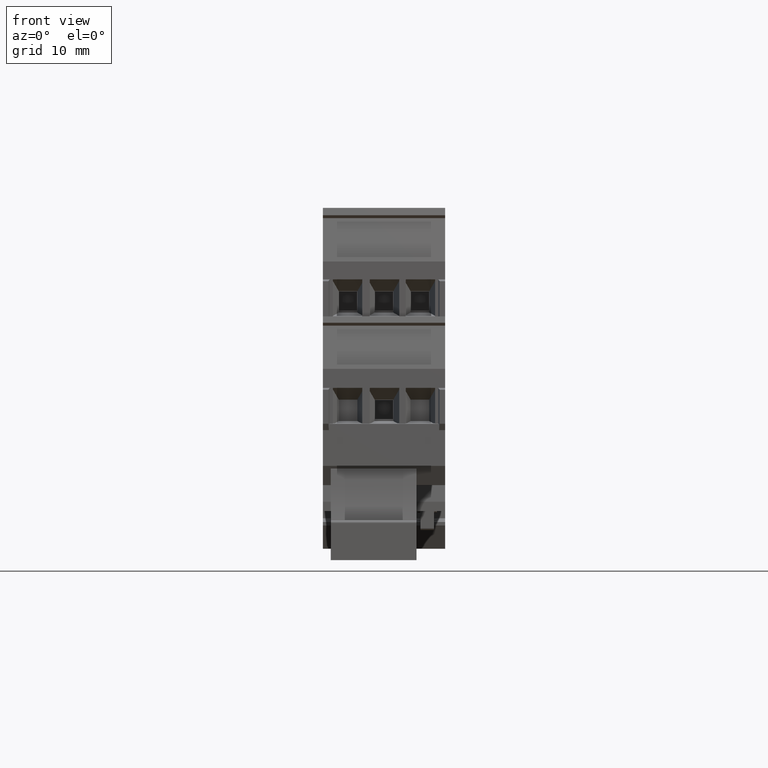
[diagram: clean part render]
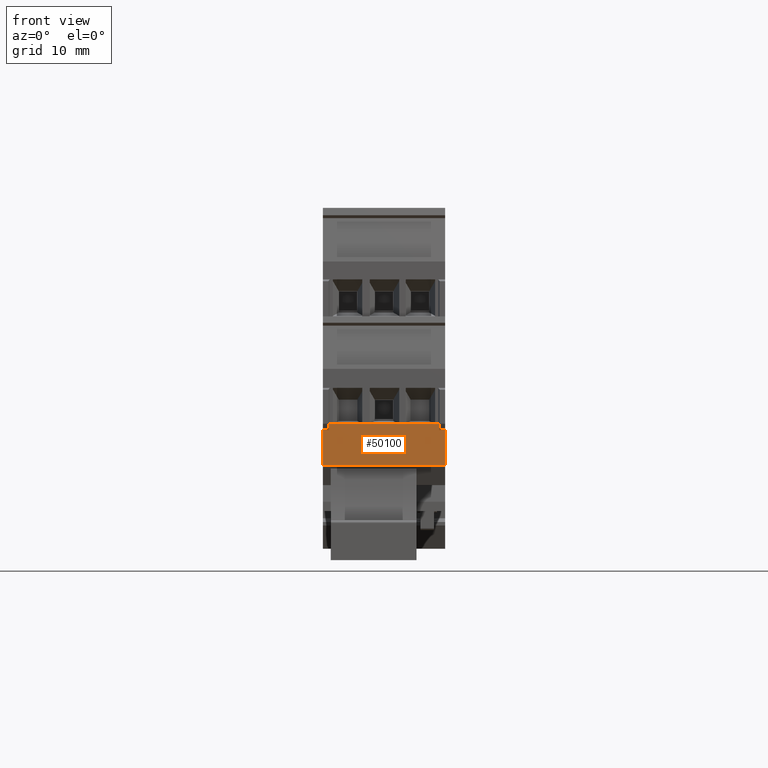
[diagram: same view with one face highlighted and labeled with its STEP entity id]
A machine part, front view. The second image highlights one B-rep face of the part: STEP entity #50100.
In plain terms, the highlighted planar face has unit normal (0, 1, 0).
Its self-contained STEP definition (entity closure, byte-faithful):
#2200=CARTESIAN_POINT('',(94.1530202869944,16.8194125693447,
-1.11334144294469));
#2210=VERTEX_POINT('',#2200);
#2240=CARTESIAN_POINT('',(94.1530202869944,21.1424286096103,
-1.11334144313539));
#2250=DIRECTION('',(1.56403759828511E-19,-1.,4.41130550527766E-11));
#2260=VECTOR('',#2250,1.);
#2270=LINE('',#2240,#2260);
#2280=CARTESIAN_POINT('',(94.1530202869944,11.6453465829026,
-1.11334144271644));
#2290=VERTEX_POINT('',#2280);
#2300=EDGE_CURVE('',#2210,#2290,#2270,.T.);
#11930=CARTESIAN_POINT('',(94.1530202869897,11.6453465836762,
16.5866585537182));
#11940=VERTEX_POINT('',#11930);
#11970=CARTESIAN_POINT('',(94.1530202869897,21.1424286103838,
16.5866585532993));
#11980=DIRECTION('',(1.56403759828511E-19,-1.,4.41130550527766E-11));
#11990=VECTOR('',#11980,1.);
#12000=LINE('',#11970,#11990);
#12010=CARTESIAN_POINT('',(94.1530202869897,16.8194125701285,
16.58665855349));
#12020=VERTEX_POINT('',#12010);
#12030=EDGE_CURVE('',#12020,#11940,#12000,.T.);
#49300=CARTESIAN_POINT('',(94.1530202869942,17.7109036491316,
-0.243639142450988));
#49310=VERTEX_POINT('',#49300);
#49340=CARTESIAN_POINT('',(94.1530202869942,21.1424286096483,
-0.243639142599548));
#49350=DIRECTION('',(1.56403975163501E-19,-1.,4.32961759002859E-11));
#49360=VECTOR('',#49350,1.);
#49370=LINE('',#49340,#49360);
#49380=CARTESIAN_POINT('',(94.1530202869942,16.8194125693825,
-0.243639142412384));
#49390=VERTEX_POINT('',#49380);
#49400=EDGE_CURVE('',#49310,#49390,#49370,.T.);
#49660=CARTESIAN_POINT('',(94.1530202869897,17.046120000372,
16.6866609555037));
#49670=DIRECTION('',(1.,1.56415389836633E-19,2.63640960903014E-13));
#49680=DIRECTION('',(-1.56403975168242E-19,1.,-4.32962630394988E-11));
#49690=AXIS2_PLACEMENT_3D('',#49660,#49670,#49680);
#49700=PLANE('',#49690);
#49710=CARTESIAN_POINT('',(94.1530202869898,16.8194125701146,
16.5866585594971));
#49720=DIRECTION('',(-2.63640960903014E-13,4.35013393018142E-11,1.));
#49730=VECTOR('',#49720,1.);
#49740=LINE('',#49710,#49730);
#49750=EDGE_CURVE('',#2210,#49390,#49740,.T.);
#49760=ORIENTED_EDGE('',*,*,#49750,.F.);
#49770=ORIENTED_EDGE('',*,*,#49400,.T.);
#49780=CARTESIAN_POINT('',(94.1530202869898,17.7109036498739,
16.5866585594582));
#49790=DIRECTION('',(-2.63640960903014E-13,4.41038485075519E-11,1.));
#49800=VECTOR('',#49790,1.);
#49810=LINE('',#49780,#49800);
#49820=CARTESIAN_POINT('',(94.15302028699,17.7109036498356,
15.7169562529178));
#49830=VERTEX_POINT('',#49820);
#49840=EDGE_CURVE('',#49310,#49830,#49810,.T.);
#49850=ORIENTED_EDGE('',*,*,#49840,.F.);
#49860=CARTESIAN_POINT('',(94.15302028699,21.1424286103458,
15.7169562527637));
#49870=DIRECTION('',(1.56403544391654E-19,-1.,4.49299342052673E-11));
#49880=VECTOR('',#49870,1.);
#49890=LINE('',#49860,#49880);
#49900=CARTESIAN_POINT('',(94.15302028699,16.8194125700892,
15.7169562529579));
#49910=VERTEX_POINT('',#49900);
#49920=EDGE_CURVE('',#49830,#49910,#49890,.T.);
#49930=ORIENTED_EDGE('',*,*,#49920,.F.);
#49940=CARTESIAN_POINT('',(94.1530202869915,16.8194125693338,
-1.11334144895183));
#49950=DIRECTION('',(-1.13026475887129E-23,-4.4724770803739E-11,-1.));
#49960=VECTOR('',#49950,1.);
#49970=LINE('',#49940,#49960);
#49980=EDGE_CURVE('',#12020,#49910,#49970,.T.);
#49990=ORIENTED_EDGE('',*,*,#49980,.T.);
#50000=ORIENTED_EDGE('',*,*,#12030,.F.);
#50010=CARTESIAN_POINT('',(94.1530202869897,11.6453465836762,
16.5866585597233));
#50020=DIRECTION('',(-2.63640960903014E-13,4.37046590461264E-11,1.));
#50030=VECTOR('',#50020,1.);
#50040=LINE('',#50010,#50030);
#50050=EDGE_CURVE('',#2290,#11940,#50040,.T.);
#50060=ORIENTED_EDGE('',*,*,#50050,.T.);
#50070=ORIENTED_EDGE('',*,*,#2300,.T.);
#50080=EDGE_LOOP('',(#50070,#50060,#50000,#49990,#49930,#49850,#49770,
#49760));
#50090=FACE_OUTER_BOUND('',#50080,.T.);
#50100=ADVANCED_FACE('',(#50090),#49700,.F.);